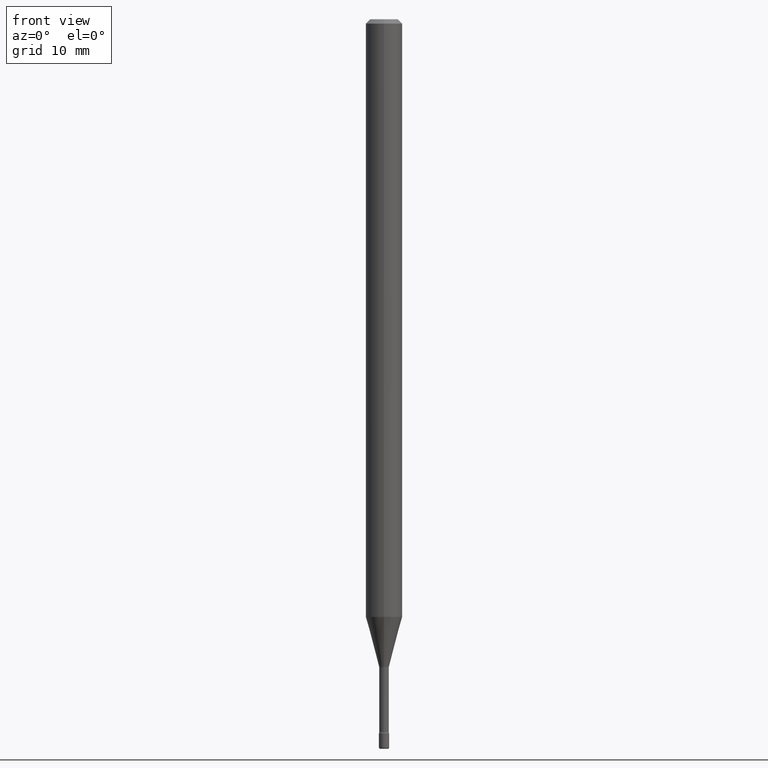
[diagram: clean part render]
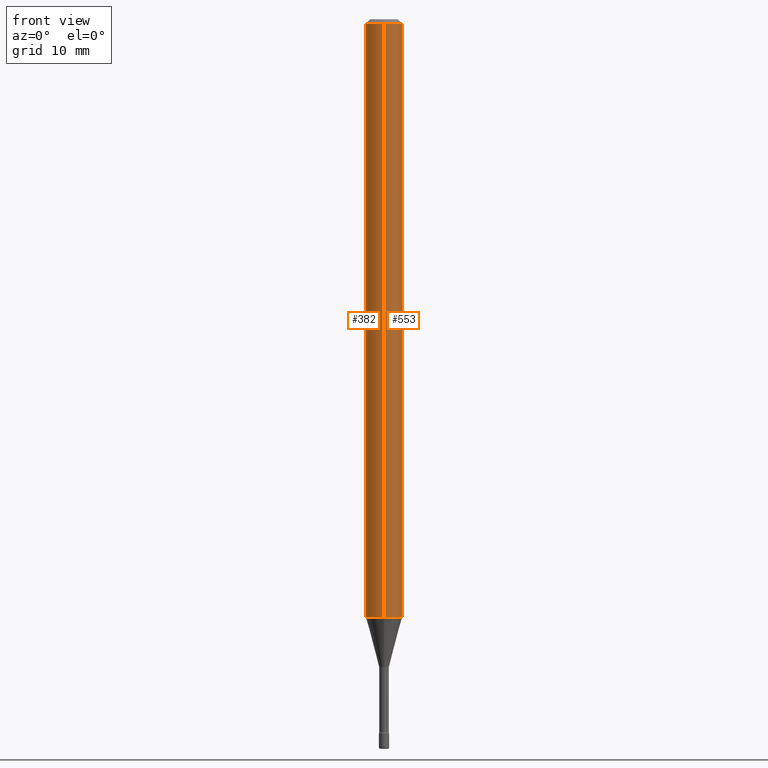
[diagram: same view with one multi-face feature highlighted, each face labeled with its STEP entity id]
A machine part, front view. The highlighted faces form ONE feature: a constant-radius fillet chain: 2 tangent blend faces with common blend radius 1.5875 mm. The faces share edges in the B-rep.
Their STEP definitions:
[1] entity #382 (Cylinder):
#11 = EDGE_LOOP ( 'NONE', ( #301, #538, #297, #148 ) ) ;
#12 = VECTOR ( 'NONE', #519, 39.37007874015748143 ) ;
#16 = VERTEX_POINT ( 'NONE', #205 ) ;
#20 = CARTESIAN_POINT ( 'NONE',  ( 3.668164718633155352E-31, -5.237277129058484255E-17, -0.01500000000000002720 ) ) ;
#36 = CIRCLE ( 'NONE', #336, 0.06250000000000000000 ) ;
#44 = LINE ( 'NONE', #259, #12 ) ;
#78 = DIRECTION ( 'NONE',  ( -6.982962677686265922E-15, -1.000000000000000000, 3.491518086038982206E-15 ) ) ;
#83 = CARTESIAN_POINT ( 'NONE',  ( 4.440892098501126102E-16, 0.06249999999999283906, -2.048139060311453985 ) ) ;
#98 = CARTESIAN_POINT ( 'NONE',  ( 4.440892098500625669E-16, 0.06250000000000000000, 2.598535185138096507E-16 ) ) ;
#148 = ORIENTED_EDGE ( 'NONE', *, *, #207, .F. ) ;
#153 = DIRECTION ( 'NONE',  ( -2.445443145755432371E-29, 3.491518086038982995E-15, 1.000000000000000000 ) ) ;
#173 = DIRECTION ( 'NONE',  ( -2.445443145755432371E-29, 3.491518086038982995E-15, 1.000000000000000000 ) ) ;
#174 = AXIS2_PLACEMENT_3D ( 'NONE', #20, #153, #549 ) ;
#189 = CIRCLE ( 'NONE', #174, 0.06250000000000000000 ) ;
#193 = DIRECTION ( 'NONE',  ( -2.445443145755432371E-29, 3.491518086038982995E-15, 1.000000000000000000 ) ) ;
#205 = CARTESIAN_POINT ( 'NONE',  ( 4.440892098501130047E-16, 0.06249999999999995143, -0.01500000000000024578 ) ) ;
#207 = EDGE_CURVE ( 'NONE', #16, #290, #189, .T. ) ;
#236 = CARTESIAN_POINT ( 'NONE',  ( -4.364351673553416753E-16, -0.06250000000000717482, -2.048139060311453541 ) ) ;
#238 = VECTOR ( 'NONE', #434, 39.37007874015748143 ) ;
#247 = CYLINDRICAL_SURFACE ( 'NONE', #539, 0.06250000000000000000 ) ;
#252 = VERTEX_POINT ( 'NONE', #236 ) ;
#258 = CARTESIAN_POINT ( 'NONE',  ( 5.008607626592616382E-29, -7.151114571800326842E-15, -2.048139060311453541 ) ) ;
#259 = CARTESIAN_POINT ( 'NONE',  ( -4.364351673553916201E-16, -0.06250000000000000000, 6.962932792686824758E-16 ) ) ;
#262 = LINE ( 'NONE', #98, #238 ) ;
#290 = VERTEX_POINT ( 'NONE', #493 ) ;
#297 = ORIENTED_EDGE ( 'NONE', *, *, #298, .T. ) ;
#298 = EDGE_CURVE ( 'NONE', #252, #290, #44, .T. ) ;
#301 = ORIENTED_EDGE ( 'NONE', *, *, #359, .F. ) ;
#324 = FACE_OUTER_BOUND ( 'NONE', #11, .T. ) ;
#331 = DIRECTION ( 'NONE',  ( -6.982962677686265922E-15, -1.000000000000000000, 4.370956789862821150E-15 ) ) ;
#336 = AXIS2_PLACEMENT_3D ( 'NONE', #258, #173, #331 ) ;
#359 = EDGE_CURVE ( 'NONE', #533, #16, #262, .T. ) ;
#382 = ADVANCED_FACE ( 'NONE', ( #324 ), #247, .T. ) ;
#434 = DIRECTION ( 'NONE',  ( -2.445443145755432091E-29, 3.491518086038982995E-15, 1.000000000000000000 ) ) ;
#493 = CARTESIAN_POINT ( 'NONE',  ( -4.364351673553912750E-16, -0.06250000000000005551, -0.01499999999999981036 ) ) ;
#512 = EDGE_CURVE ( 'NONE', #533, #252, #36, .T. ) ;
#519 = DIRECTION ( 'NONE',  ( -2.445443145755432091E-29, 3.491518086038982995E-15, 1.000000000000000000 ) ) ;
#533 = VERTEX_POINT ( 'NONE', #83 ) ;
#538 = ORIENTED_EDGE ( 'NONE', *, *, #512, .T. ) ;
#539 = AXIS2_PLACEMENT_3D ( 'NONE', #560, #193, #78 ) ;
#549 = DIRECTION ( 'NONE',  ( -6.982962677686265922E-15, -1.000000000000000000, 3.483106191921935554E-15 ) ) ;
#560 = CARTESIAN_POINT ( 'NONE',  ( -1.169113584055446105E-44, 1.669184350826100908E-30, 4.780733988912460139E-16 ) ) ;
[2] entity #553 (Cylinder):
#12 = VECTOR ( 'NONE', #519, 39.37007874015748143 ) ;
#16 = VERTEX_POINT ( 'NONE', #205 ) ;
#25 = EDGE_CURVE ( 'NONE', #252, #533, #280, .T. ) ;
#44 = LINE ( 'NONE', #259, #12 ) ;
#82 = EDGE_LOOP ( 'NONE', ( #127, #464, #408, #524 ) ) ;
#83 = CARTESIAN_POINT ( 'NONE',  ( 4.440892098501126102E-16, 0.06249999999999283906, -2.048139060311453985 ) ) ;
#89 = EDGE_CURVE ( 'NONE', #290, #16, #454, .T. ) ;
#98 = CARTESIAN_POINT ( 'NONE',  ( 4.440892098500625669E-16, 0.06250000000000000000, 2.598535185138096507E-16 ) ) ;
#113 = CARTESIAN_POINT ( 'NONE',  ( 5.008607626592616382E-29, -7.151114571800326842E-15, -2.048139060311453541 ) ) ;
#127 = ORIENTED_EDGE ( 'NONE', *, *, #25, .T. ) ;
#159 = AXIS2_PLACEMENT_3D ( 'NONE', #113, #251, #561 ) ;
#176 = DIRECTION ( 'NONE',  ( -2.445443145755432371E-29, 3.491518086038982995E-15, 1.000000000000000000 ) ) ;
#205 = CARTESIAN_POINT ( 'NONE',  ( 4.440892098501130047E-16, 0.06249999999999995143, -0.01500000000000024578 ) ) ;
#218 = AXIS2_PLACEMENT_3D ( 'NONE', #370, #425, #427 ) ;
#236 = CARTESIAN_POINT ( 'NONE',  ( -4.364351673553416753E-16, -0.06250000000000717482, -2.048139060311453541 ) ) ;
#238 = VECTOR ( 'NONE', #434, 39.37007874015748143 ) ;
#251 = DIRECTION ( 'NONE',  ( -2.445443145755432371E-29, 3.491518086038982995E-15, 1.000000000000000000 ) ) ;
#252 = VERTEX_POINT ( 'NONE', #236 ) ;
#253 = AXIS2_PLACEMENT_3D ( 'NONE', #520, #176, #470 ) ;
#259 = CARTESIAN_POINT ( 'NONE',  ( -4.364351673553916201E-16, -0.06250000000000000000, 6.962932792686824758E-16 ) ) ;
#262 = LINE ( 'NONE', #98, #238 ) ;
#280 = CIRCLE ( 'NONE', #159, 0.06250000000000000000 ) ;
#290 = VERTEX_POINT ( 'NONE', #493 ) ;
#298 = EDGE_CURVE ( 'NONE', #252, #290, #44, .T. ) ;
#359 = EDGE_CURVE ( 'NONE', #533, #16, #262, .T. ) ;
#370 = CARTESIAN_POINT ( 'NONE',  ( -1.169113584055446105E-44, 1.669184350826100908E-30, 4.780733988912460139E-16 ) ) ;
#380 = FACE_OUTER_BOUND ( 'NONE', #82, .T. ) ;
#408 = ORIENTED_EDGE ( 'NONE', *, *, #89, .F. ) ;
#422 = CYLINDRICAL_SURFACE ( 'NONE', #218, 0.06250000000000000000 ) ;
#425 = DIRECTION ( 'NONE',  ( -2.445443145755432371E-29, 3.491518086038982995E-15, 1.000000000000000000 ) ) ;
#427 = DIRECTION ( 'NONE',  ( -6.982962677686265922E-15, -1.000000000000000000, 3.491518086038982206E-15 ) ) ;
#434 = DIRECTION ( 'NONE',  ( -2.445443145755432091E-29, 3.491518086038982995E-15, 1.000000000000000000 ) ) ;
#454 = CIRCLE ( 'NONE', #253, 0.06250000000000000000 ) ;
#464 = ORIENTED_EDGE ( 'NONE', *, *, #359, .T. ) ;
#470 = DIRECTION ( 'NONE',  ( -6.982962677686265922E-15, -1.000000000000000000, 3.483106191921935554E-15 ) ) ;
#493 = CARTESIAN_POINT ( 'NONE',  ( -4.364351673553912750E-16, -0.06250000000000005551, -0.01499999999999981036 ) ) ;
#519 = DIRECTION ( 'NONE',  ( -2.445443145755432091E-29, 3.491518086038982995E-15, 1.000000000000000000 ) ) ;
#520 = CARTESIAN_POINT ( 'NONE',  ( 3.668164718633155352E-31, -5.237277129058484255E-17, -0.01500000000000002720 ) ) ;
#524 = ORIENTED_EDGE ( 'NONE', *, *, #298, .F. ) ;
#533 = VERTEX_POINT ( 'NONE', #83 ) ;
#553 = ADVANCED_FACE ( 'NONE', ( #380 ), #422, .T. ) ;
#561 = DIRECTION ( 'NONE',  ( -6.982962677686265922E-15, -1.000000000000000000, 4.370956789862821150E-15 ) ) ;